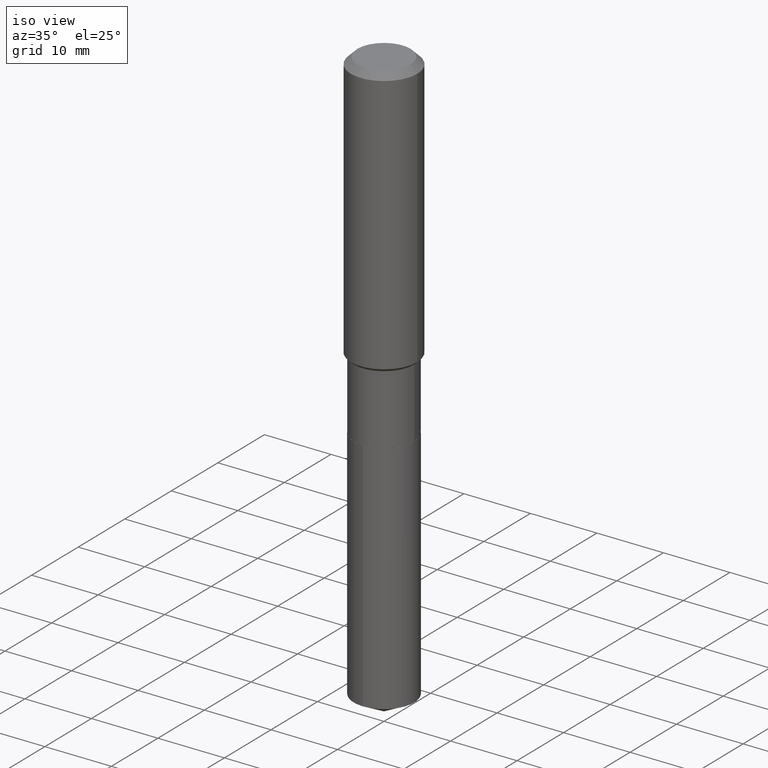
[diagram: clean part render]
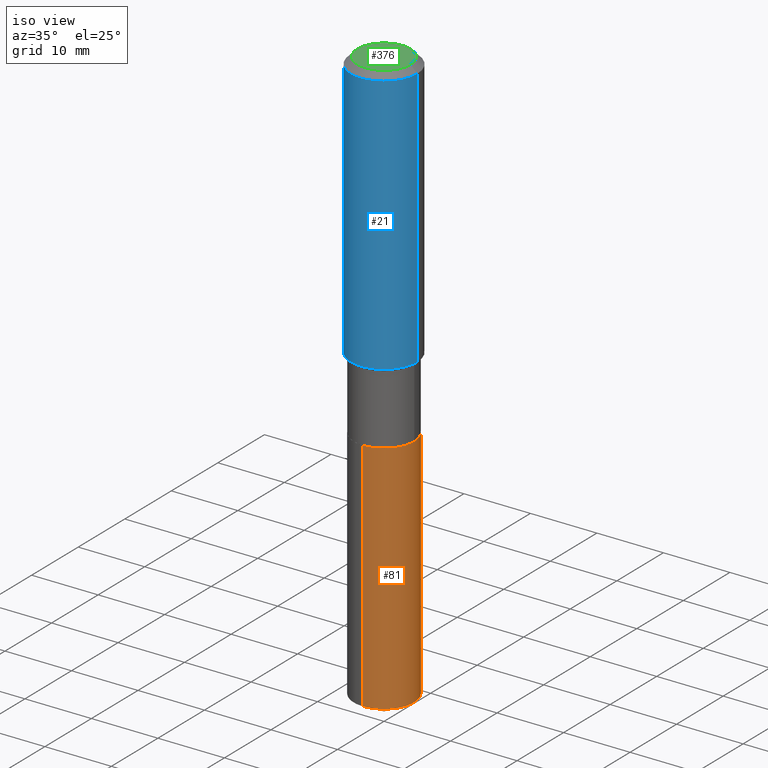
[diagram: same view with three faces highlighted in distinct colors, each labeled with its STEP entity id]
A machine part, iso view with three faces highlighted in distinct colors.
Their STEP definitions:

[orange] entity #81 — the highlighted cylindrical surface (partial cylindrical patch) has radius 4.5504 mm, axis along (-0, 0, 1).
#8 = VERTEX_POINT ( 'NONE', #206 ) ;
#42 = DIRECTION ( 'NONE',  ( -2.445568839554977058E-29, 3.491338085363987915E-15, 1.000000000000000000 ) ) ;
#47 = ORIENTED_EDGE ( 'NONE', *, *, #194, .T. ) ;
#52 = DIRECTION ( 'NONE',  ( -2.445568839554976778E-29, 3.491338085363988309E-15, 1.000000000000000000 ) ) ;
#81 = ADVANCED_FACE ( 'NONE', ( #343 ), #225, .T. ) ;
#104 = CARTESIAN_POINT ( 'NONE',  ( 8.335872928799957267E-29, -1.190101770539773330E-14, -3.408644255317845762 ) ) ;
#129 = AXIS2_PLACEMENT_3D ( 'NONE', #104, #411, #487 ) ;
#148 = DIRECTION ( 'NONE',  ( -2.445568839554977058E-29, 3.491338085363987915E-15, 1.000000000000000000 ) ) ;
#177 = AXIS2_PLACEMENT_3D ( 'NONE', #424, #486, #350 ) ;
#193 = VERTEX_POINT ( 'NONE', #311 ) ;
#194 = EDGE_CURVE ( 'NONE', #8, #372, #381, .T. ) ;
#202 = EDGE_CURVE ( 'NONE', #372, #193, #265, .T. ) ;
#203 = LINE ( 'NONE', #467, #296 ) ;
#206 = CARTESIAN_POINT ( 'NONE',  ( -1.250997763707411198E-15, -0.1791500000000119386, -3.408644255317845317 ) ) ;
#207 = CARTESIAN_POINT ( 'NONE',  ( 1.272937311114302931E-15, 0.1791499999999880965, -3.408644255317846206 ) ) ;
#208 = CIRCLE ( 'NONE', #474, 0.1791500000000000314 ) ;
#212 = CARTESIAN_POINT ( 'NONE',  ( -1.250997763707445513E-15, -0.1791500000000070536, -2.011799999999999145 ) ) ;
#225 = CYLINDRICAL_SURFACE ( 'NONE', #177, 0.1791500000000000314 ) ;
#229 = ORIENTED_EDGE ( 'NONE', *, *, #202, .T. ) ;
#248 = CARTESIAN_POINT ( 'NONE',  ( 4.919794144283257255E-29, -7.024162157484639438E-15, -2.011800000000000033 ) ) ;
#260 = EDGE_CURVE ( 'NONE', #8, #464, #203, .T. ) ;
#265 = LINE ( 'NONE', #340, #303 ) ;
#279 = ORIENTED_EDGE ( 'NONE', *, *, #446, .F. ) ;
#296 = VECTOR ( 'NONE', #42, 39.37007874015748143 ) ;
#303 = VECTOR ( 'NONE', #148, 39.37007874015748143 ) ;
#311 = CARTESIAN_POINT ( 'NONE',  ( 1.272937311114303128E-15, 0.1791499999999929815, -2.011800000000000477 ) ) ;
#312 = EDGE_LOOP ( 'NONE', ( #47, #229, #279, #349 ) ) ;
#327 = DIRECTION ( 'NONE',  ( -6.982962677686265133E-15, -1.000000000000000000, 3.049788438363675772E-15 ) ) ;
#340 = CARTESIAN_POINT ( 'NONE',  ( 1.272937311114268616E-15, 0.1791499999999929815, -2.011800000000000477 ) ) ;
#343 = FACE_OUTER_BOUND ( 'NONE', #312, .T. ) ;
#349 = ORIENTED_EDGE ( 'NONE', *, *, #260, .F. ) ;
#350 = DIRECTION ( 'NONE',  ( -6.982962677686265133E-15, -1.000000000000000000, 3.049788438363675772E-15 ) ) ;
#372 = VERTEX_POINT ( 'NONE', #207 ) ;
#381 = CIRCLE ( 'NONE', #129, 0.1791500000000000314 ) ;
#411 = DIRECTION ( 'NONE',  ( -2.445568839554976778E-29, 3.491338085363988309E-15, 1.000000000000000000 ) ) ;
#424 = CARTESIAN_POINT ( 'NONE',  ( 4.919794144283257255E-29, -7.024162157484639438E-15, -2.011800000000000033 ) ) ;
#446 = EDGE_CURVE ( 'NONE', #464, #193, #208, .T. ) ;
#464 = VERTEX_POINT ( 'NONE', #212 ) ;
#467 = CARTESIAN_POINT ( 'NONE',  ( -1.250997763707445513E-15, -0.1791500000000070536, -2.011799999999999145 ) ) ;
#474 = AXIS2_PLACEMENT_3D ( 'NONE', #248, #52, #327 ) ;
#486 = DIRECTION ( 'NONE',  ( -2.445568839554976778E-29, 3.491338085363988309E-15, 1.000000000000000000 ) ) ;
#487 = DIRECTION ( 'NONE',  ( -6.982962677686265133E-15, -1.000000000000000000, 3.049788438363675772E-15 ) ) ;

[blue] entity #21 — the highlighted cylindrical surface (partial cylindrical patch) has radius 5 mm, axis along (-0, 0, 1).
#5 = CARTESIAN_POINT ( 'NONE',  ( -0.1968500000000002192, -4.125169250839980741E-15, -1.582099999999999840 ) ) ;
#6 = CIRCLE ( 'NONE', #414, 0.1968500000000002192 ) ;
#9 = EDGE_CURVE ( 'NONE', #351, #185, #6, .T. ) ;
#10 = DIRECTION ( 'NONE',  ( 1.000000000000000000, -6.982962677686266711E-15, 4.876176775795935793E-29 ) ) ;
#21 = ADVANCED_FACE ( 'NONE', ( #128 ), #204, .T. ) ;
#27 = VERTEX_POINT ( 'NONE', #322 ) ;
#33 = ORIENTED_EDGE ( 'NONE', *, *, #273, .F. ) ;
#43 = DIRECTION ( 'NONE',  ( -2.445468806185136597E-29, 3.491481338843145583E-15, 1.000000000000000000 ) ) ;
#67 = DIRECTION ( 'NONE',  ( -2.445468806185136877E-29, 3.491481338843145188E-15, 1.000000000000000000 ) ) ;
#70 = VECTOR ( 'NONE', #166, 39.37007874015748143 ) ;
#76 = LINE ( 'NONE', #281, #70 ) ;
#83 = EDGE_LOOP ( 'NONE', ( #33, #455, #231, #400 ) ) ;
#87 = EDGE_CURVE ( 'NONE', #185, #27, #302, .T. ) ;
#100 = CARTESIAN_POINT ( 'NONE',  ( -0.1968500000000000250, -1.431962747903239464E-15, -0.03937000000000029365 ) ) ;
#107 = CARTESIAN_POINT ( 'NONE',  ( 0.1968500000000001082, -1.374596203102542397E-15, 9.598753983154305062E-30 ) ) ;
#128 = FACE_OUTER_BOUND ( 'NONE', #83, .T. ) ;
#166 = DIRECTION ( 'NONE',  ( -2.445468806185136877E-29, 3.491481338843145188E-15, 1.000000000000000000 ) ) ;
#170 = VERTEX_POINT ( 'NONE', #100 ) ;
#185 = VERTEX_POINT ( 'NONE', #345 ) ;
#188 = CIRCLE ( 'NONE', #199, 0.1968500000000000250 ) ;
#199 = AXIS2_PLACEMENT_3D ( 'NONE', #236, #329, #438 ) ;
#204 = CYLINDRICAL_SURFACE ( 'NONE', #291, 0.1968500000000001082 ) ;
#231 = ORIENTED_EDGE ( 'NONE', *, *, #87, .T. ) ;
#236 = CARTESIAN_POINT ( 'NONE',  ( 9.627810689950954155E-31, -1.374596203102556547E-16, -0.03937000000000029365 ) ) ;
#237 = DIRECTION ( 'NONE',  ( -2.445468806185136597E-29, 3.491481338843145583E-15, 1.000000000000000000 ) ) ;
#273 = EDGE_CURVE ( 'NONE', #351, #170, #76, .T. ) ;
#281 = CARTESIAN_POINT ( 'NONE',  ( -0.1968500000000001082, 1.398703375343757985E-15, -9.682923725166787881E-30 ) ) ;
#285 = CARTESIAN_POINT ( 'NONE',  ( 0.000000000000000000, 0.000000000000000000, 0.000000000000000000 ) ) ;
#287 = DIRECTION ( 'NONE',  ( 1.000000000000000000, -6.982962677686265922E-15, 0.000000000000000000 ) ) ;
#291 = AXIS2_PLACEMENT_3D ( 'NONE', #285, #43, #10 ) ;
#302 = LINE ( 'NONE', #107, #341 ) ;
#322 = CARTESIAN_POINT ( 'NONE',  ( 0.1968500000000000250, -1.512055823412797189E-15, -0.03937000000000029365 ) ) ;
#329 = DIRECTION ( 'NONE',  ( -2.445468806185136597E-29, 3.491481338843145583E-15, 1.000000000000000000 ) ) ;
#341 = VECTOR ( 'NONE', #67, 39.37007874015748143 ) ;
#345 = CARTESIAN_POINT ( 'NONE',  ( 0.1968500000000002192, -6.898468829286282504E-15, -1.582099999999999840 ) ) ;
#351 = VERTEX_POINT ( 'NONE', #5 ) ;
#360 = EDGE_CURVE ( 'NONE', #170, #27, #188, .T. ) ;
#400 = ORIENTED_EDGE ( 'NONE', *, *, #360, .F. ) ;
#414 = AXIS2_PLACEMENT_3D ( 'NONE', #432, #237, #287 ) ;
#432 = CARTESIAN_POINT ( 'NONE',  ( 3.868976198265503885E-29, -5.523872626183740107E-15, -1.582099999999999840 ) ) ;
#438 = DIRECTION ( 'NONE',  ( 1.000000000000000000, -6.982962677686265922E-15, 0.000000000000000000 ) ) ;
#455 = ORIENTED_EDGE ( 'NONE', *, *, #9, .T. ) ;

[green] entity #376 — the highlighted planar face has unit normal (0, -0, -1).
#7 = AXIS2_PLACEMENT_3D ( 'NONE', #326, #462, #388 ) ;
#36 = EDGE_LOOP ( 'NONE', ( #427, #196 ) ) ;
#49 = DIRECTION ( 'NONE',  ( 1.000000000000000000, -6.982962677686265922E-15, 4.876223630392693006E-29 ) ) ;
#84 = DIRECTION ( 'NONE',  ( -2.445468806185136597E-29, 3.491481338843145583E-15, 1.000000000000000000 ) ) ;
#86 = FACE_OUTER_BOUND ( 'NONE', #36, .T. ) ;
#93 = DIRECTION ( 'NONE',  ( 1.000000000000000000, -6.982962677686265922E-15, 4.876223630392693006E-29 ) ) ;
#146 = VERTEX_POINT ( 'NONE', #348 ) ;
#160 = CIRCLE ( 'NONE', #304, 0.1574800000000000089 ) ;
#189 = CARTESIAN_POINT ( 'NONE',  ( 0.1574800000000000089, -1.284169937930321189E-15, 3.855188123724205385E-18 ) ) ;
#196 = ORIENTED_EDGE ( 'NONE', *, *, #470, .T. ) ;
#218 = DIRECTION ( 'NONE',  ( -2.445468806185136597E-29, 3.491481338843145583E-15, 1.000000000000000000 ) ) ;
#250 = PLANE ( 'NONE',  #7 ) ;
#278 = EDGE_CURVE ( 'NONE', #146, #346, #370, .T. ) ;
#304 = AXIS2_PLACEMENT_3D ( 'NONE', #469, #84, #49 ) ;
#326 = CARTESIAN_POINT ( 'NONE',  ( -4.713871149261283817E-47, 6.730158695841841775E-33, 1.927594061857935365E-18 ) ) ;
#346 = VERTEX_POINT ( 'NONE', #189 ) ;
#348 = CARTESIAN_POINT ( 'NONE',  ( -0.1574800000000000089, 1.168406772637159618E-15, 3.855188123707939751E-18 ) ) ;
#370 = CIRCLE ( 'NONE', #407, 0.1574800000000000089 ) ;
#376 = ADVANCED_FACE ( 'NONE', ( #86 ), #250, .F. ) ;
#388 = DIRECTION ( 'NONE',  ( -1.000000000000000000, 6.982962677686265922E-15, -4.876176775795935793E-29 ) ) ;
#407 = AXIS2_PLACEMENT_3D ( 'NONE', #477, #218, #93 ) ;
#427 = ORIENTED_EDGE ( 'NONE', *, *, #278, .T. ) ;
#462 = DIRECTION ( 'NONE',  ( 2.438088387897960049E-29, -3.491481338843145188E-15, -1.000000000000000000 ) ) ;
#469 = CARTESIAN_POINT ( 'NONE',  ( -9.427742298522567634E-47, 1.346031739168368355E-32, 3.855188123715870730E-18 ) ) ;
#470 = EDGE_CURVE ( 'NONE', #346, #146, #160, .T. ) ;
#477 = CARTESIAN_POINT ( 'NONE',  ( -9.427742298522567634E-47, 1.346031739168368355E-32, 3.855188123715870730E-18 ) ) ;